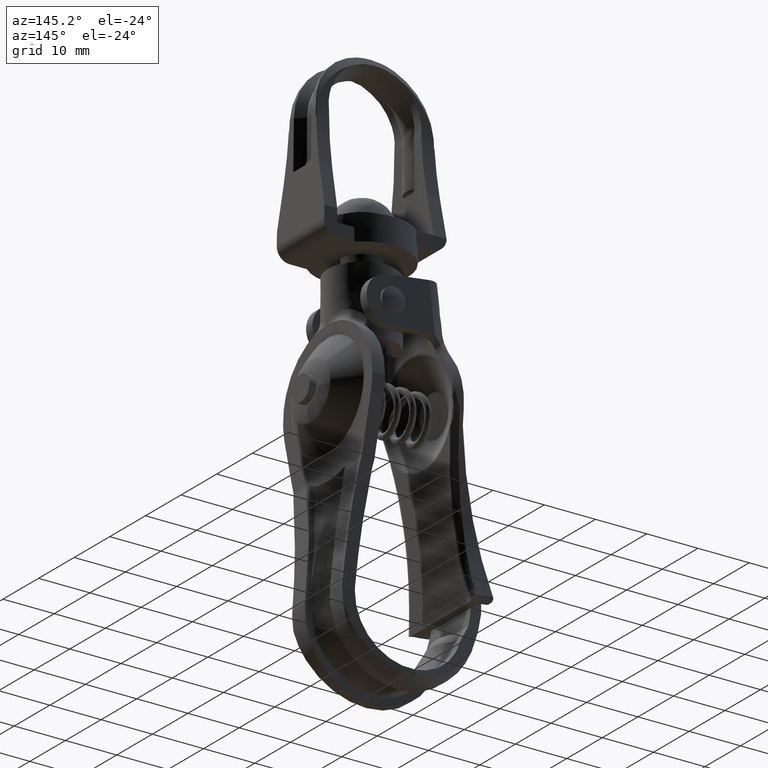
[diagram: clean part render]
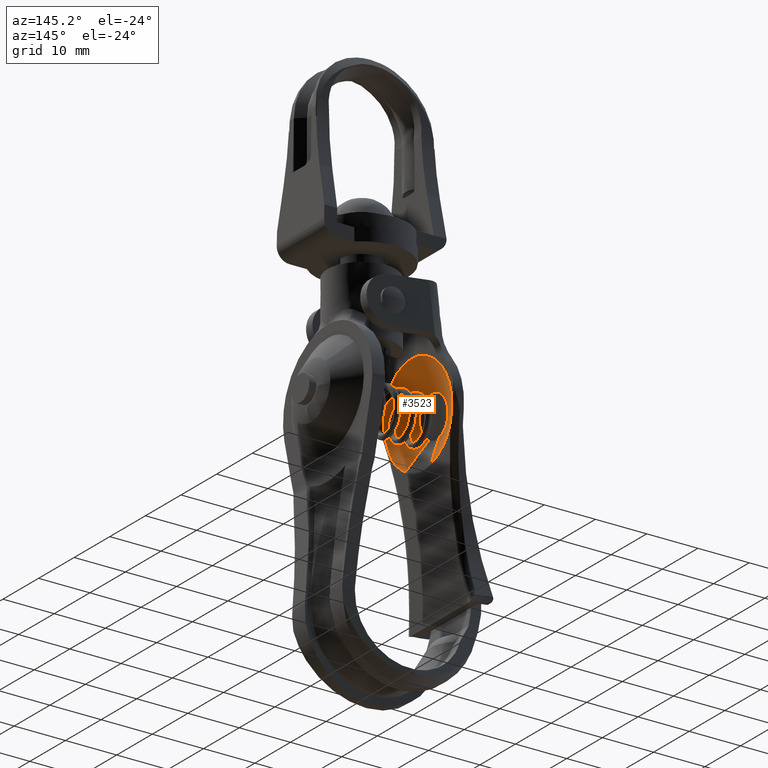
[diagram: same view with one face highlighted and labeled with its STEP entity id]
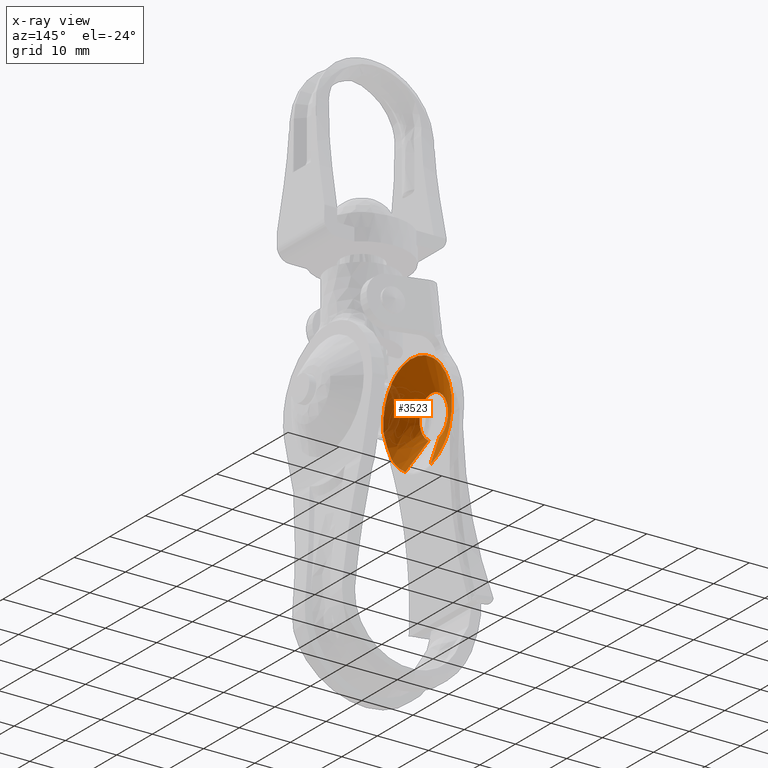
[diagram: x-ray of the same camera — body ghosted, the highlighted face saturated]
A machine part, auxiliary view. The second image highlights one B-rep face of the part: STEP entity #3523.
The next image is the same camera in x-ray: the body ghosted, the highlighted face saturated — about 9% of this face is hidden behind the body in this view.
In plain terms, the highlighted face is a freeform B-spline surface patch.
Its self-contained STEP definition (entity closure, byte-faithful):
#3297=CARTESIAN_POINT('',(-12.380815629087005,0.824253556907192,-3.720031782077441));
#3298=CARTESIAN_POINT('',(-12.380815629087000,2.437850657931397,-3.362504419988185));
#3299=CARTESIAN_POINT('',(-12.380815629087000,3.279364940341237,-1.940050508054140));
#3300=CARTESIAN_POINT('',(-12.380815629087001,5.219415448395377,1.339314432287097));
#3301=CARTESIAN_POINT('',(-12.380815629087000,1.940050508054140,3.279364940341237));
#3302=CARTESIAN_POINT('',(-12.380815629087001,-1.339314432287097,5.219415448395377));
#3303=CARTESIAN_POINT('',(-12.380815629087000,-3.279364940341237,1.940050508054140));
#3304=CARTESIAN_POINT('',(-12.380815629087001,-5.219415448395377,-1.339314432287097));
#3305=CARTESIAN_POINT('',(-12.380815629087000,-1.940050508054140,-3.279364940341237));
#3306=CARTESIAN_POINT('',(-9.025792858749702,2.088901989994634,-9.427659398380742));
#3307=CARTESIAN_POINT('',(-9.025792858749705,6.178233685482305,-8.521579452607616));
#3308=CARTESIAN_POINT('',(-9.025792858749703,8.310879452557529,-4.916661060184782));
#3309=CARTESIAN_POINT('',(-9.025792858749703,13.227540512742312,3.394218392372747));
#3310=CARTESIAN_POINT('',(-9.025792858749703,4.916661060184782,8.310879452557529));
#3311=CARTESIAN_POINT('',(-9.025792858749703,-3.394218392372747,13.227540512742312));
#3312=CARTESIAN_POINT('',(-9.025792858749703,-8.310879452557529,4.916661060184782));
#3313=CARTESIAN_POINT('',(-9.025792858749703,-13.227540512742312,-3.394218392372747));
#3314=CARTESIAN_POINT('',(-9.025792858749703,-4.916661060184782,-8.310879452557529));
#3322=(BOUNDED_SURFACE()B_SPLINE_SURFACE(2,1,((#3297,#3306),(#3298,#3307),(#3299,#3308),(#3300,#3309),(#3301,#3310),(#3302,#3311),(#3303,#3312),(#3304,#3313),(#3305,#3314)),.UNSPECIFIED.,.F.,.F.,.U.)B_SPLINE_SURFACE_WITH_KNOTS((3,2,2,2,3),(2,2),(0.0,8.319528883153135,24.318622889216851,40.317716895280569,56.316810901344290),(0.0,6.740365454126385),.UNSPECIFIED.)GEOMETRIC_REPRESENTATION_ITEM()RATIONAL_B_SPLINE_SURFACE(((0.853787705168325,0.853787705168325),(0.847695526217005,0.847695526217005),(1.0,1.0),(0.707106781186548,0.707106781186548),(1.0,1.0),(0.707106781186548,0.707106781186548),(1.0,1.0),(0.707106781186548,0.707106781186548),(1.0,1.0)))REPRESENTATION_ITEM('')SURFACE());
#3323=CARTESIAN_POINT('',(-9.107622682416459,2.058056906264671,-9.288448968713967));
#3324=VERTEX_POINT('',#3323);
#3325=CARTESIAN_POINT('',(-9.107622682416469,8.095069036222871,-4.998073606161990));
#3326=VERTEX_POINT('',#3325);
#3327=CARTESIAN_POINT('',(-9.107622682416459,2.058056906264671,-9.288448968713967));
#3328=CARTESIAN_POINT('',(-9.107622682416457,3.102744640132662,-9.057697220698998));
#3329=CARTESIAN_POINT('',(-9.107622682416476,4.814364421693030,-8.359438492910467));
#3330=CARTESIAN_POINT('',(-9.107622682416457,6.809344994951650,-6.765260644502424));
#3331=CARTESIAN_POINT('',(-9.107622682416467,7.720499556540645,-5.604987811263578));
#3332=CARTESIAN_POINT('',(-9.107622682416469,8.095069036222871,-4.998073606161990));
#3333=B_SPLINE_CURVE_WITH_KNOTS('',3,(#3327,#3328,#3329,#3330,#3331,#3332),.UNSPECIFIED.,.F.,.U.,(4,1,1,4),(0.000000064275538,3.209384765090086,5.467796642641099,7.607373191045073),.UNSPECIFIED.);
#3334=EDGE_CURVE('',#3324,#3326,#3333,.T.);
#3335=ORIENTED_EDGE('',*,*,#3334,.T.);
#3336=CARTESIAN_POINT('',(-9.107622682416480,9.513334566698790,-0.085719868648944));
#3337=VERTEX_POINT('',#3336);
#3338=CARTESIAN_POINT('',(-9.107622682416469,8.095069036222871,-4.998073606161990));
#3339=CARTESIAN_POINT('',(-9.107622682416473,8.123895550247308,-4.951385093849206));
#3340=CARTESIAN_POINT('',(-9.108490698711556,8.150777489061341,-4.904065969051938));
#3341=CARTESIAN_POINT('',(-9.111090716702019,8.202174810141200,-4.808658438275600));
#3342=CARTESIAN_POINT('',(-9.112838890641591,8.226662053305686,-4.760560941199004));
#3343=CARTESIAN_POINT('',(-9.118806101726827,8.297575293591667,-4.615438060908049));
#3344=CARTESIAN_POINT('',(-9.123722668674402,8.341497281442544,-4.517596662909379));
#3345=CARTESIAN_POINT('',(-9.138968176091508,8.467233037786132,-4.222096106185509));
#3346=CARTESIAN_POINT('',(-9.149745977535551,8.543100049830022,-4.022487555380531));
#3347=CARTESIAN_POINT('',(-9.167958264675731,8.686676945934671,-3.620558971518326));
#3348=CARTESIAN_POINT('',(-9.175501010696879,8.754192938182486,-3.418176266391940));
#3349=CARTESIAN_POINT('',(-9.185715879610202,8.883503520522751,-3.011485093467335));
#3350=CARTESIAN_POINT('',(-9.191097725559558,9.007023044665164,-2.602845630550090));
#3351=CARTESIAN_POINT('',(-9.185787298648510,9.120520843977083,-2.190812487913807));
#3352=CARTESIAN_POINT('',(-9.175601933979449,9.228198209088271,-1.776821007434877));
#3353=CARTESIAN_POINT('',(-9.168052239110859,9.279164141306891,-1.568858221775821));
#3354=CARTESIAN_POINT('',(-9.149754841369065,9.372434227476312,-1.150056755925939));
#3355=CARTESIAN_POINT('',(-9.138876951685756,9.414980856633420,-0.938903498664925));
#3356=CARTESIAN_POINT('',(-9.123597176798050,9.466146609154331,-0.620918590174274));
#3357=CARTESIAN_POINT('',(-9.118687756095556,9.481087043371851,-0.514646731318701));
#3358=CARTESIAN_POINT('',(-9.112761505035739,9.498303549205417,-0.354521055001378));
#3359=CARTESIAN_POINT('',(-9.111032034668474,9.503165474487467,-0.301024508455818));
#3360=CARTESIAN_POINT('',(-9.108469812937619,9.510424489339018,-0.193682526176867));
#3361=CARTESIAN_POINT('',(-9.107622682416475,9.512846909565276,-0.139840873944256));
#3362=CARTESIAN_POINT('',(-9.107622682416469,9.513334566698799,-0.085719868648944));
#3363=B_SPLINE_CURVE_WITH_KNOTS('',3,(#3338,#3339,#3340,#3341,#3342,#3343,#3344,#3345,#3346,#3347,#3348,#3349,#3350,#3351,#3352,#3353,#3354,#3355,#3356,#3357,#3358,#3359,#3360,#3361,#3362),.UNSPECIFIED.,.F.,.U.,(4,2,2,2,2,2,1,2,2,2,2,2,4),(0.0,0.031250000000000,0.062500000000000,0.125000000000000,0.250000000000000,0.375000000000000,0.500000000000000,0.625000000000000,0.750000000000000,0.875000000000000,0.937500000000000,0.968750000000000,1.0),.UNSPECIFIED.);
#3364=EDGE_CURVE('',#3326,#3337,#3363,.T.);
#3365=ORIENTED_EDGE('',*,*,#3364,.T.);
#3366=CARTESIAN_POINT('',(-9.107626328407818,5.743190919812110,7.584623896408300));
#3367=VERTEX_POINT('',#3366);
#3368=CARTESIAN_POINT('',(-9.107622682416480,9.513334566698790,-0.085719868648944));
#3369=CARTESIAN_POINT('',(-9.107622981508248,9.520634297708289,0.699105670186314));
#3370=CARTESIAN_POINT('',(-9.107623430230252,9.392459352129931,1.808181618605677));
#3371=CARTESIAN_POINT('',(-9.107624207996269,8.864783356294497,3.580368219436794));
#3372=CARTESIAN_POINT('',(-9.107625139922376,7.901296010439864,5.541015095962579));
#3373=CARTESIAN_POINT('',(-9.107625906233487,6.627131497244132,6.916366512489190));
#3374=CARTESIAN_POINT('',(-9.107626328407818,5.743190919812110,7.584623896408300));
#3375=B_SPLINE_CURVE_WITH_KNOTS('',3,(#3368,#3369,#3370,#3371,#3372,#3373,#3374),.UNSPECIFIED.,.F.,.U.,(4,1,1,1,4),(0.000000089982166,2.354514172269129,3.324019300093474,5.540026511509903,8.864045721621460),.UNSPECIFIED.);
#3376=EDGE_CURVE('',#3337,#3367,#3375,.T.);
#3377=ORIENTED_EDGE('',*,*,#3376,.T.);
#3378=CARTESIAN_POINT('',(-9.107629012231271,5.739841806497391,7.587152868233369));
#3379=VERTEX_POINT('',#3378);
#3380=CARTESIAN_POINT('',(-9.107626328407818,5.743190919812110,7.584623896408300));
#3381=CARTESIAN_POINT('',(-9.107629012231271,5.739841806497391,7.587152868233369));
#3382=QUASI_UNIFORM_CURVE('',1,(#3380,#3381),.UNSPECIFIED.,.F.,.U.);
#3383=EDGE_CURVE('',#3367,#3379,#3382,.T.);
#3384=ORIENTED_EDGE('',*,*,#3383,.T.);
#3385=CARTESIAN_POINT('',(-9.107623506722041,-5.734529234204421,7.591181041584600));
#3386=VERTEX_POINT('',#3385);
#3387=CARTESIAN_POINT('',(-9.107629012231271,5.739841806497391,7.587152868233369));
#3388=CARTESIAN_POINT('',(-9.107628595097861,4.870468796219768,8.245729969013635));
#3389=CARTESIAN_POINT('',(-9.107627886845727,3.394357582097472,9.004945910124755));
#3390=CARTESIAN_POINT('',(-9.107626800888326,1.131047115598548,9.505568052415294));
#3391=CARTESIAN_POINT('',(-9.107625810714772,-0.932634441230973,9.558696239200835));
#3392=CARTESIAN_POINT('',(-9.107624642179840,-3.368050583986717,9.034470365810766));
#3393=CARTESIAN_POINT('',(-9.107623875013127,-4.966950654938064,8.171544808651495));
#3394=CARTESIAN_POINT('',(-9.107623506722041,-5.734529234204421,7.591181041584600));
#3395=B_SPLINE_CURVE_WITH_KNOTS('',3,(#3387,#3388,#3389,#3390,#3391,#3392,#3393,#3394),.UNSPECIFIED.,.F.,.U.,(4,1,1,1,1,4),(0.000000146044176,3.271632830477529,4.907455831478692,6.928111810474282,9.429990102184824,12.316720122449180),.UNSPECIFIED.);
#3396=EDGE_CURVE('',#3379,#3386,#3395,.T.);
#3397=ORIENTED_EDGE('',*,*,#3396,.T.);
#3398=CARTESIAN_POINT('',(-9.107626328407818,-5.743190919812040,7.584623896408361));
#3399=VERTEX_POINT('',#3398);
#3400=CARTESIAN_POINT('',(-9.107623506722041,-5.734529234204421,7.591181041584600));
#3401=CARTESIAN_POINT('',(-9.107626328407818,-5.743190919812040,7.584623896408361));
#3402=QUASI_UNIFORM_CURVE('',1,(#3400,#3401),.UNSPECIFIED.,.F.,.U.);
#3403=EDGE_CURVE('',#3386,#3399,#3402,.T.);
#3404=ORIENTED_EDGE('',*,*,#3403,.T.);
#3405=CARTESIAN_POINT('',(-9.107622682416469,-9.513334674738351,-0.085707877399444));
#3406=VERTEX_POINT('',#3405);
#3407=CARTESIAN_POINT('',(-9.107626328407818,-5.743190919812040,7.584623896408361));
#3408=CARTESIAN_POINT('',(-9.107625976556728,-6.479614244194770,7.027546456945976));
#3409=CARTESIAN_POINT('',(-9.107625447538919,-7.395162843625847,6.095748126001703));
#3410=CARTESIAN_POINT('',(-9.107624663773528,-8.398390878476757,4.541637730836081));
#3411=CARTESIAN_POINT('',(-9.107623794243512,-9.244678016135543,2.686367630613304));
#3412=CARTESIAN_POINT('',(-9.107623104612127,-9.524064854529659,1.022354132583396));
#3413=CARTESIAN_POINT('',(-9.107622682416469,-9.513334674738351,-0.085707877399444));
#3414=B_SPLINE_CURVE_WITH_KNOTS('',3,(#3407,#3408,#3409,#3410,#3411,#3412,#3413),.UNSPECIFIED.,.F.,.U.,(4,1,1,1,4),(0.000000089980265,2.770011263503553,3.878017548242674,5.540019012908389,8.864033723837260),.UNSPECIFIED.);
#3415=EDGE_CURVE('',#3399,#3406,#3414,.T.);
#3416=ORIENTED_EDGE('',*,*,#3415,.T.);
#3417=CARTESIAN_POINT('',(-9.107622682416480,-8.095062583965619,-4.998084056466740));
#3418=VERTEX_POINT('',#3417);
#3419=CARTESIAN_POINT('',(-9.107622682416469,-9.513334674738351,-0.085707877399444));
#3420=CARTESIAN_POINT('',(-9.107622682416471,-9.512840349999499,-0.140576540833642));
#3421=CARTESIAN_POINT('',(-9.108490714607509,-9.510364540942440,-0.194942309178711));
#3422=CARTESIAN_POINT('',(-9.111090776472363,-9.503000485937420,-0.303063365373777));
#3423=CARTESIAN_POINT('',(-9.112838978935987,-9.498083584531386,-0.356811346964590));
#3424=CARTESIAN_POINT('',(-9.118806284421048,-9.480733938774227,-0.517399546044160));
#3425=CARTESIAN_POINT('',(-9.123722925779299,-9.465747550084469,-0.623595563469125));
#3426=CARTESIAN_POINT('',(-9.138968658050487,-9.414632679710651,-0.940641736194021));
#3427=CARTESIAN_POINT('',(-9.149746611723714,-9.372433477823268,-1.149971670821394));
#3428=CARTESIAN_POINT('',(-9.167959153796238,-9.279687937693842,-1.566578011110819));
#3429=CARTESIAN_POINT('',(-9.175502003976117,-9.228944137608270,-1.773804099621211));
#3430=CARTESIAN_POINT('',(-9.185717013848118,-9.121589121969258,-2.186836185943825));
#3431=CARTESIAN_POINT('',(-9.191099069526983,-9.008294971460755,-2.598429920765032));
#3432=CARTESIAN_POINT('',(-9.185788433793121,-8.884713985573191,-3.007553912531009));
#3433=CARTESIAN_POINT('',(-9.175602928527374,-8.755163653845870,-3.415232397052968));
#3434=CARTESIAN_POINT('',(-9.168053129402750,-8.687442365767918,-3.618358695024170));
#3435=CARTESIAN_POINT('',(-9.149755475517646,-8.543138022998098,-4.022427893850068));
#3436=CARTESIAN_POINT('',(-9.138877431519447,-8.466592458647329,-4.223766216223332));
#3437=CARTESIAN_POINT('',(-9.123597430691948,-8.340398178135365,-4.520090868878343));
#3438=CARTESIAN_POINT('',(-9.118687935657849,-8.296396440745873,-4.617972828367936));
#3439=CARTESIAN_POINT('',(-9.112761591186500,-8.225616302781241,-4.762634680854735));
#3440=CARTESIAN_POINT('',(-9.111032092773867,-8.201216283617717,-4.810490553035942));
#3441=CARTESIAN_POINT('',(-9.108469828203406,-8.150144723112382,-4.905183727573315));
#3442=CARTESIAN_POINT('',(-9.107622682416466,-8.123496631804484,-4.952031330227922));
#3443=CARTESIAN_POINT('',(-9.107622682416469,-8.095062583965630,-4.998084056466740));
#3444=B_SPLINE_CURVE_WITH_KNOTS('',3,(#3419,#3420,#3421,#3422,#3423,#3424,#3425,#3426,#3427,#3428,#3429,#3430,#3431,#3432,#3433,#3434,#3435,#3436,#3437,#3438,#3439,#3440,#3441,#3442,#3443),.UNSPECIFIED.,.F.,.U.,(4,2,2,2,2,2,1,2,2,2,2,2,4),(0.0,0.031250000000000,0.062500000000000,0.125000000000000,0.250000000000000,0.375000000000000,0.500000000000000,0.624999999999999,0.749999999999999,0.874999999999999,0.937499999999999,0.968750000000000,1.0),.UNSPECIFIED.);
#3445=EDGE_CURVE('',#3406,#3418,#3444,.T.);
#3446=ORIENTED_EDGE('',*,*,#3445,.T.);
#3447=CARTESIAN_POINT('',(-9.107622682416466,-4.844060802815925,-8.188159586405817));
#3448=VERTEX_POINT('',#3447);
#3449=CARTESIAN_POINT('',(-9.107622682416480,-8.095062583965619,-4.998084056466740));
#3450=CARTESIAN_POINT('',(-9.107622682416496,-7.767901969844700,-5.528077115882772));
#3451=CARTESIAN_POINT('',(-9.107622682416432,-6.833896693999050,-6.753214329622136));
#3452=CARTESIAN_POINT('',(-9.107622682416496,-5.627764916150747,-7.724980618814186));
#3453=CARTESIAN_POINT('',(-9.107622682416466,-4.844060802815925,-8.188159586405817));
#3454=B_SPLINE_CURVE_WITH_KNOTS('',3,(#3449,#3450,#3451,#3452,#3453),.UNSPECIFIED.,.F.,.U.,(4,1,4),(0.000000021256473,1.868536526012836,4.599437138951179),.UNSPECIFIED.);
#3455=EDGE_CURVE('',#3418,#3448,#3454,.T.);
#3456=ORIENTED_EDGE('',*,*,#3455,.T.);
#3457=CARTESIAN_POINT('',(-12.300981297363981,-2.010880766077381,-3.399092887590971));
#3458=VERTEX_POINT('',#3457);
#3459=CARTESIAN_POINT('',(-12.300981297363981,-2.010880766077381,-3.399092887590971));
#3460=CARTESIAN_POINT('',(-9.107622682416466,-4.844060802815925,-8.188159586405817));
#3461=QUASI_UNIFORM_CURVE('',1,(#3459,#3460),.UNSPECIFIED.,.F.,.U.);
#3462=EDGE_CURVE('',#3458,#3448,#3461,.T.);
#3463=ORIENTED_EDGE('',*,*,#3462,.F.);
#3464=CARTESIAN_POINT('',(-12.300981654777960,-3.949362284626698,-0.000003778461449));
#3465=VERTEX_POINT('',#3464);
#3466=CARTESIAN_POINT('',(-12.300981654777960,-3.949362284626698,-0.000003778461449));
#3467=CARTESIAN_POINT('',(-12.300981616662201,-3.949495964565080,-0.362493650580801));
#3468=CARTESIAN_POINT('',(-12.300981549408601,-3.860652956263750,-1.002091300195814));
#3469=CARTESIAN_POINT('',(-12.300981463593690,-3.534050034467366,-1.818210555036952));
#3470=CARTESIAN_POINT('',(-12.300981374797720,-2.987007732299634,-2.662681008925373));
#3471=CARTESIAN_POINT('',(-12.300981323586170,-2.433239010560649,-3.149714229384177));
#3472=CARTESIAN_POINT('',(-12.300981297363981,-2.010880766077381,-3.399092887590971));
#3473=B_SPLINE_CURVE_WITH_KNOTS('',3,(#3466,#3467,#3468,#3469,#3470,#3471,#3472),.UNSPECIFIED.,.F.,.U.,(4,1,1,1,4),(0.000000141239344,1.087441524299589,1.919030462203546,2.622633071669510,4.093876073489983),.UNSPECIFIED.);
#3474=EDGE_CURVE('',#3465,#3458,#3473,.T.);
#3475=ORIENTED_EDGE('',*,*,#3474,.F.);
#3476=CARTESIAN_POINT('',(-12.300981654777960,0.0,3.949362284628506));
#3477=VERTEX_POINT('',#3476);
#3478=CARTESIAN_POINT('',(-12.300981654777960,0.0,3.949362284628506));
#3479=CARTESIAN_POINT('',(-12.300981654777971,-0.549425530590703,3.950114634458032));
#3480=CARTESIAN_POINT('',(-12.300981654777971,-1.453461952640787,3.757357531403831));
#3481=CARTESIAN_POINT('',(-12.300981654777949,-2.563890726122349,3.073154126689646));
#3482=CARTESIAN_POINT('',(-12.300981654777971,-3.265755313557972,2.298687777981404));
#3483=CARTESIAN_POINT('',(-12.300981654777971,-3.804681188997749,1.259824199883322));
#3484=CARTESIAN_POINT('',(-12.300981654777971,-3.949815223666574,0.484737756306111));
#3485=CARTESIAN_POINT('',(-12.300981654777960,-3.949362284626698,-0.000003778461449));
#3486=B_SPLINE_CURVE_WITH_KNOTS('',3,(#3478,#3479,#3480,#3481,#3482,#3483,#3484,#3485),.UNSPECIFIED.,.F.,.U.,(4,1,1,1,1,4),(0.000000337961797,1.647887833231891,2.714218851690384,3.877331311682161,4.749788452532264,6.203801573696872),.UNSPECIFIED.);
#3487=EDGE_CURVE('',#3477,#3465,#3486,.T.);
#3488=ORIENTED_EDGE('',*,*,#3487,.F.);
#3489=CARTESIAN_POINT('',(-12.300981654777960,3.949362284626698,0.000003778461449));
#3490=VERTEX_POINT('',#3489);
#3491=CARTESIAN_POINT('',(-12.300981654777960,3.949362284626698,0.000003778461449));
#3492=CARTESIAN_POINT('',(-12.300981654777960,3.949568040107549,0.420063121998971));
#3493=CARTESIAN_POINT('',(-12.300981654777960,3.824489392396008,1.195387900998770));
#3494=CARTESIAN_POINT('',(-12.300981654777949,3.352499992922696,2.162344230162971));
#3495=CARTESIAN_POINT('',(-12.300981654777980,2.745493613710658,2.883683121323790));
#3496=CARTESIAN_POINT('',(-12.300981654777960,2.098708947481236,3.375732677679052));
#3497=CARTESIAN_POINT('',(-12.300981654777949,1.195236707188965,3.816804458799268));
#3498=CARTESIAN_POINT('',(-12.300981654777990,0.484738130493564,3.949802003486959));
#3499=CARTESIAN_POINT('',(-12.300981654777960,0.0,3.949362284628506));
#3500=B_SPLINE_CURVE_WITH_KNOTS('',3,(#3491,#3492,#3493,#3494,#3495,#3496,#3497,#3498,#3499),.UNSPECIFIED.,.F.,.U.,(4,1,1,1,1,1,4),(0.000000343135215,1.260129512102028,2.326469008399553,3.198787202318120,4.071222652937159,4.749785190084815,6.203797314383913),.UNSPECIFIED.);
#3501=EDGE_CURVE('',#3490,#3477,#3500,.T.);
#3502=ORIENTED_EDGE('',*,*,#3501,.F.);
#3503=CARTESIAN_POINT('',(-12.300981827034660,0.854346170263766,-3.855846152804205));
#3504=VERTEX_POINT('',#3503);
#3505=CARTESIAN_POINT('',(-12.300981827034660,0.854346170263766,-3.855846152804205));
#3506=CARTESIAN_POINT('',(-12.300981823811540,1.180365433084959,-3.783698549046631));
#3507=CARTESIAN_POINT('',(-12.300981814909131,1.734672554189062,-3.584423368413671));
#3508=CARTESIAN_POINT('',(-12.300981792783860,2.512820908228740,-3.089164157653327));
#3509=CARTESIAN_POINT('',(-12.300981760785110,3.224676633043632,-2.372894219376152));
#3510=CARTESIAN_POINT('',(-12.300981713196601,3.801938129730178,-1.307655871439177));
#3511=CARTESIAN_POINT('',(-12.300981674669000,3.949668974562456,-0.445244512796551));
#3512=CARTESIAN_POINT('',(-12.300981654777960,3.949362284626698,0.000003778461449));
#3513=B_SPLINE_CURVE_WITH_KNOTS('',3,(#3505,#3506,#3507,#3508,#3509,#3510,#3511,#3512),.UNSPECIFIED.,.F.,.U.,(4,1,1,1,1,4),(0.000000273111971,1.001718827476157,1.753039861319424,2.754721556131689,4.006944391107165,5.342592416941121),.UNSPECIFIED.);
#3514=EDGE_CURVE('',#3504,#3490,#3513,.T.);
#3515=ORIENTED_EDGE('',*,*,#3514,.F.);
#3516=CARTESIAN_POINT('',(-12.300981827034660,0.854346170263766,-3.855846152804205));
#3517=CARTESIAN_POINT('',(-9.107622682416459,2.058056906264671,-9.288448968713967));
#3518=QUASI_UNIFORM_CURVE('',1,(#3516,#3517),.UNSPECIFIED.,.F.,.U.);
#3519=EDGE_CURVE('',#3504,#3324,#3518,.T.);
#3520=ORIENTED_EDGE('',*,*,#3519,.T.);
#3521=EDGE_LOOP('',(#3335,#3365,#3377,#3384,#3397,#3404,#3416,#3446,#3456,#3463,#3475,#3488,#3502,#3515,#3520));
#3522=FACE_OUTER_BOUND('',#3521,.T.);
#3523=ADVANCED_FACE('',(#3522),#3322,.F.);